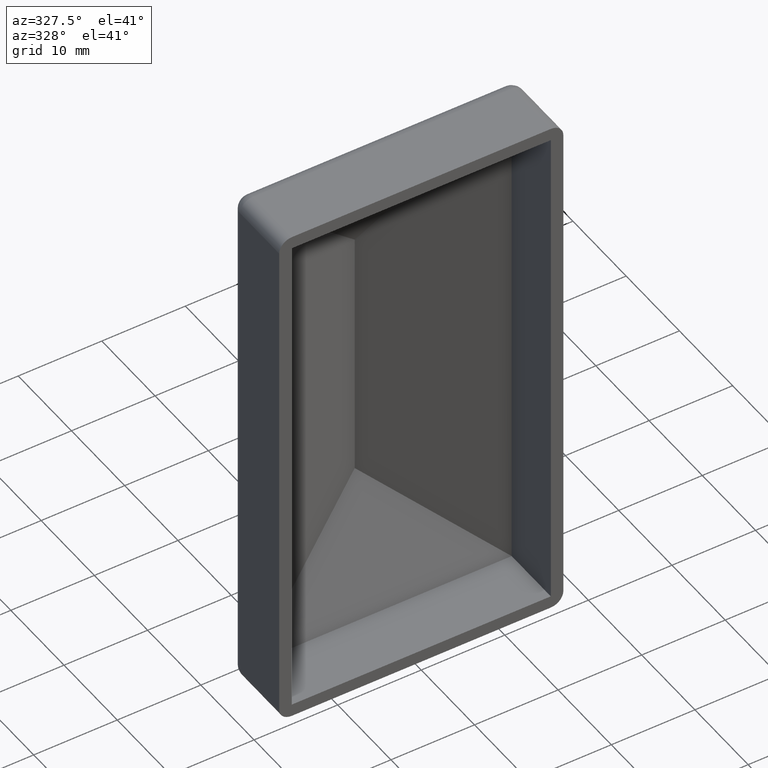
[diagram: clean part render]
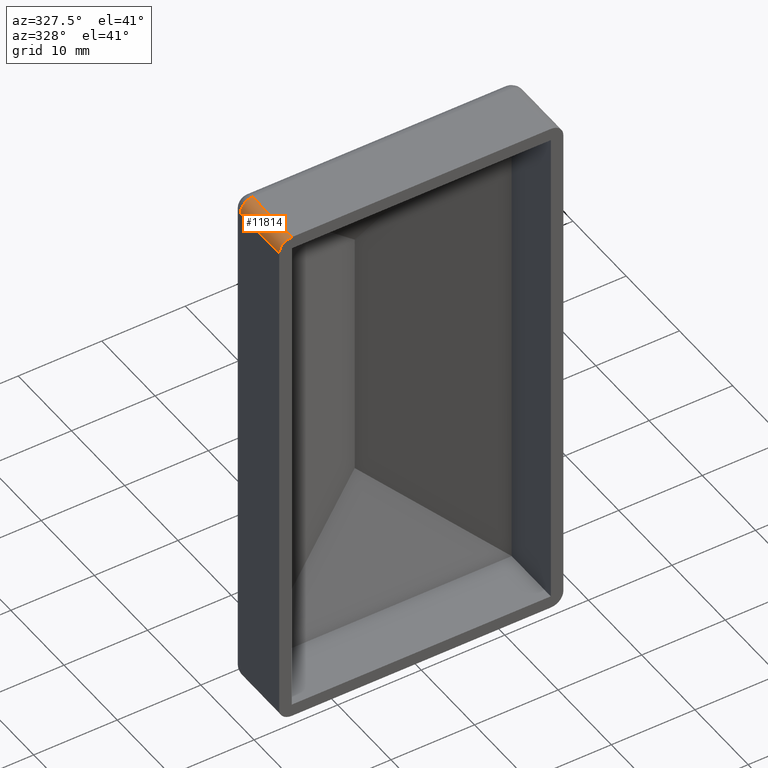
[diagram: same view with one face highlighted and labeled with its STEP entity id]
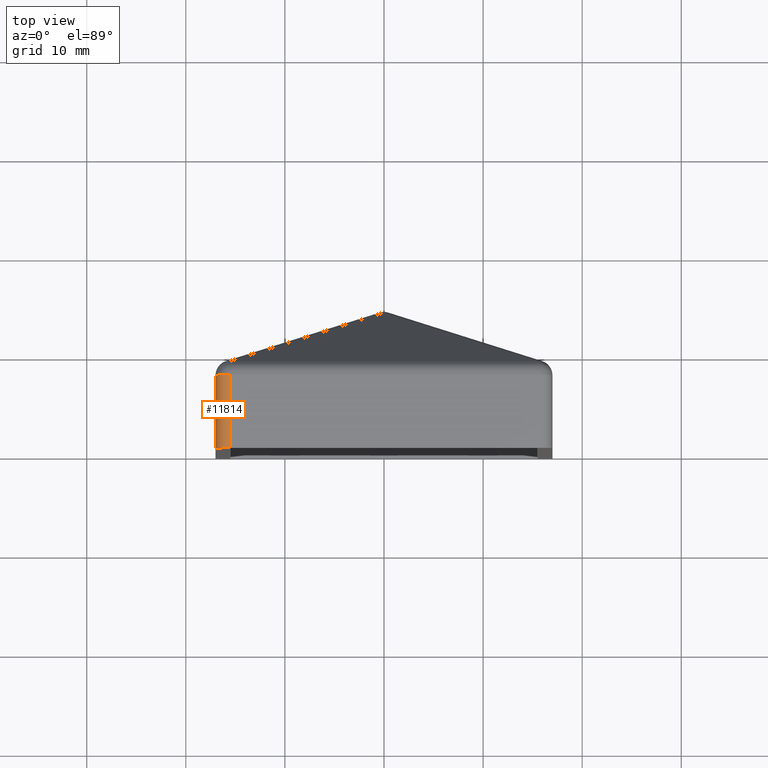
[diagram: same view with one face highlighted and labeled with its STEP entity id]
A machine part, auxiliary view. The second image highlights one B-rep face of the part: STEP entity #11814.
A second angle (top view) of the same face is appended — the face is thin or edge-on in the first view.
In plain terms, the highlighted cylindrical surface (edge-blend (fillet) strip) has radius 1.5 mm, axis along (0, -1, 0).
Its self-contained STEP definition (entity closure, byte-faithful):
#164 = CARTESIAN_POINT ( 'NONE',  ( -15.49999999999999822, 30.00000000000000000, 30.50000000000000711 ) ) ;
#510 = EDGE_CURVE ( 'NONE', #4870, #5391, #12476, .T. ) ;
#1787 = EDGE_LOOP ( 'NONE', ( #13787, #7715, #3730, #11734 ) ) ;
#2243 = DIRECTION ( 'NONE',  ( 0.000000000000000000, -1.000000000000000000, 0.000000000000000000 ) ) ;
#3070 = DIRECTION ( 'NONE',  ( 0.000000000000000000, 0.000000000000000000, 1.000000000000000000 ) ) ;
#3301 = VECTOR ( 'NONE', #2243, 1000.000000000000000 ) ;
#3312 = EDGE_CURVE ( 'NONE', #5391, #5397, #4055, .T. ) ;
#3361 = VECTOR ( 'NONE', #10971, 1000.000000000000000 ) ;
#3363 = CARTESIAN_POINT ( 'NONE',  ( -15.49999999999999822, 0.000000000000000000, 32.00000000000000711 ) ) ;
#3376 = DIRECTION ( 'NONE',  ( -0.000000000000000000, -1.000000000000000000, -0.000000000000000000 ) ) ;
#3492 = AXIS2_PLACEMENT_3D ( 'NONE', #164, #12020, #11073 ) ;
#3730 = ORIENTED_EDGE ( 'NONE', *, *, #4175, .F. ) ;
#3991 = LINE ( 'NONE', #6628, #3301 ) ;
#4055 = LINE ( 'NONE', #8724, #3361 ) ;
#4175 = EDGE_CURVE ( 'NONE', #5397, #10018, #6794, .T. ) ;
#4870 = VERTEX_POINT ( 'NONE', #3363 ) ;
#5391 = VERTEX_POINT ( 'NONE', #9441 ) ;
#5397 = VERTEX_POINT ( 'NONE', #10421 ) ;
#6088 = AXIS2_PLACEMENT_3D ( 'NONE', #9719, #9619, #3070 ) ;
#6220 = FACE_OUTER_BOUND ( 'NONE', #1787, .T. ) ;
#6628 = CARTESIAN_POINT ( 'NONE',  ( -15.49999999999999822, 30.00000000000000000, 32.00000000000000711 ) ) ;
#6794 = CIRCLE ( 'NONE', #6088, 1.500000000000001332 ) ;
#7155 = AXIS2_PLACEMENT_3D ( 'NONE', #9920, #3376, #11030 ) ;
#7715 = ORIENTED_EDGE ( 'NONE', *, *, #9198, .F. ) ;
#8724 = CARTESIAN_POINT ( 'NONE',  ( -16.99999999999999645, 30.00000000000000000, 30.50000000000000711 ) ) ;
#8821 = CARTESIAN_POINT ( 'NONE',  ( -15.49999999999999822, 7.350000000000001421, 32.00000000000000711 ) ) ;
#9198 = EDGE_CURVE ( 'NONE', #10018, #4870, #3991, .T. ) ;
#9441 = CARTESIAN_POINT ( 'NONE',  ( -16.99999999999999645, 0.000000000000000000, 30.50000000000000711 ) ) ;
#9619 = DIRECTION ( 'NONE',  ( 0.000000000000000000, 1.000000000000000000, -0.000000000000000000 ) ) ;
#9719 = CARTESIAN_POINT ( 'NONE',  ( -15.49999999999999822, 7.350000000000001421, 30.50000000000000711 ) ) ;
#9920 = CARTESIAN_POINT ( 'NONE',  ( -15.49999999999999822, 0.000000000000000000, 30.50000000000000711 ) ) ;
#10018 = VERTEX_POINT ( 'NONE', #8821 ) ;
#10421 = CARTESIAN_POINT ( 'NONE',  ( -17.00000000000000000, 7.350000000000001421, 30.50000000000000711 ) ) ;
#10971 = DIRECTION ( 'NONE',  ( -0.000000000000000000, 1.000000000000000000, -0.000000000000000000 ) ) ;
#11030 = DIRECTION ( 'NONE',  ( 0.000000000000000000, 0.000000000000000000, 1.000000000000000000 ) ) ;
#11073 = DIRECTION ( 'NONE',  ( 0.000000000000000000, 0.000000000000000000, -1.000000000000000000 ) ) ;
#11734 = ORIENTED_EDGE ( 'NONE', *, *, #3312, .F. ) ;
#11814 = ADVANCED_FACE ( 'NONE', ( #6220 ), #12866, .T. ) ;
#12020 = DIRECTION ( 'NONE',  ( 0.000000000000000000, -1.000000000000000000, 0.000000000000000000 ) ) ;
#12476 = CIRCLE ( 'NONE', #7155, 1.500000000000001332 ) ;
#12866 = CYLINDRICAL_SURFACE ( 'NONE', #3492, 1.500000000000001332 ) ;
#13787 = ORIENTED_EDGE ( 'NONE', *, *, #510, .F. ) ;